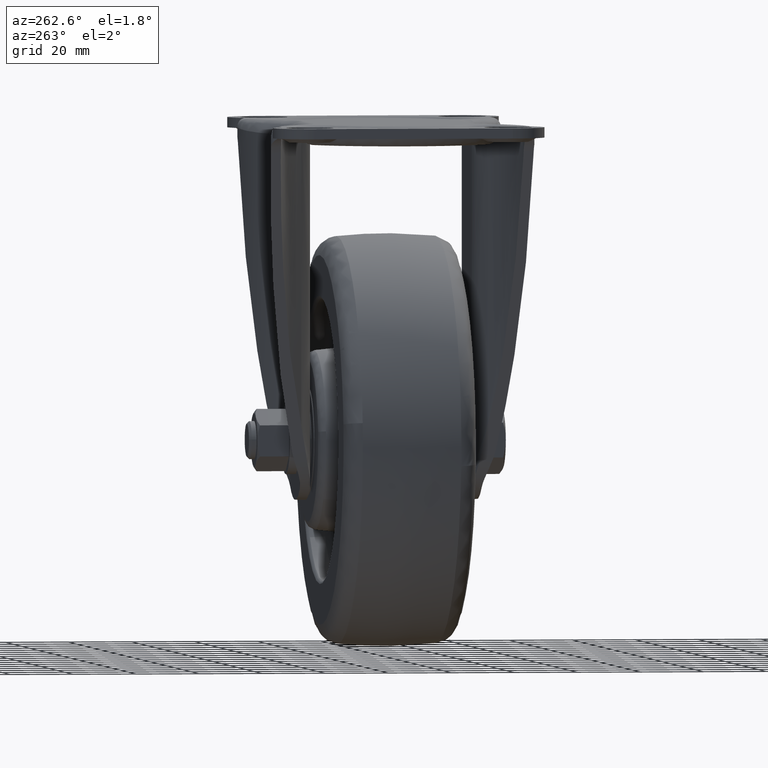
[diagram: clean part render]
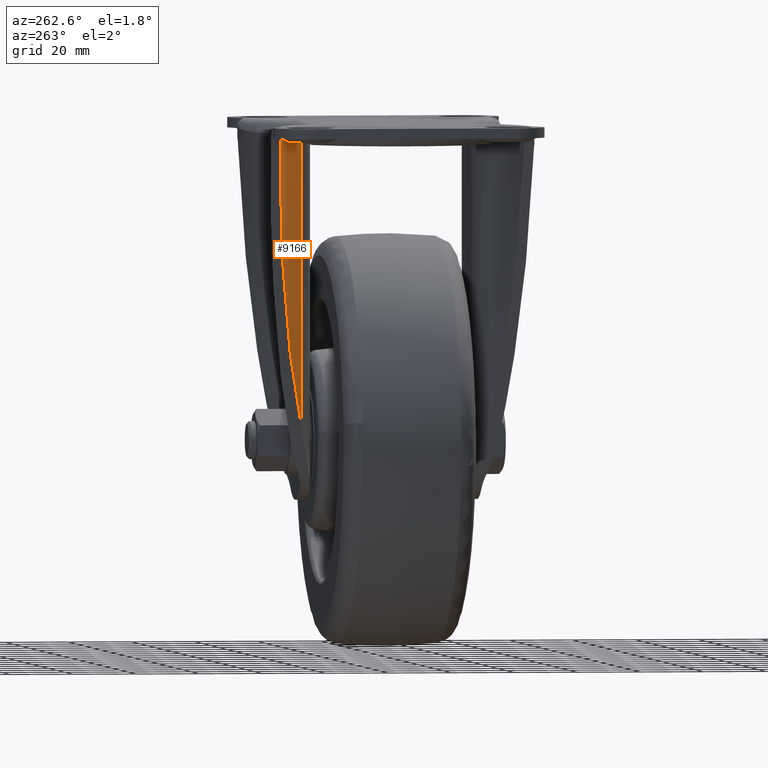
[diagram: same view with one face highlighted and labeled with its STEP entity id]
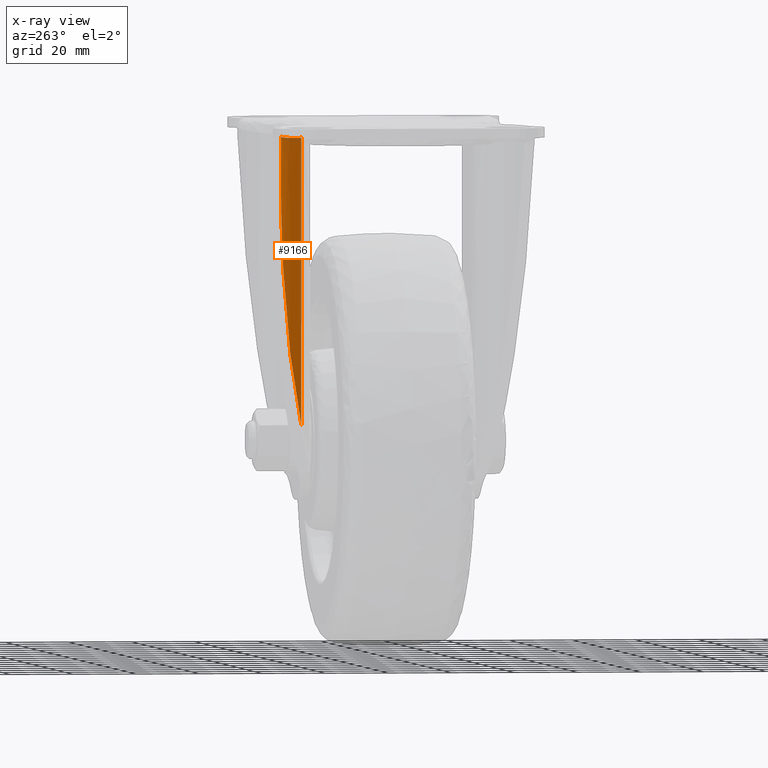
[diagram: x-ray of the same camera — body ghosted, the highlighted face saturated]
A machine part, auxiliary view. The second image highlights one B-rep face of the part: STEP entity #9166.
The next image is the same camera in x-ray: the body ghosted, the highlighted face saturated — about 2% of this face is hidden behind the body in this view.
In plain terms, the highlighted face is a freeform B-spline surface patch.
Its self-contained STEP definition (entity closure, byte-faithful):
#7348=CARTESIAN_POINT('',(-21.237268951802701,29.621883223245199,-4.200000000000000));
#7349=VERTEX_POINT('',#7348);
#7363=CARTESIAN_POINT('',(-21.237268951802701,29.621883223245199,-94.624682162195086));
#7364=VERTEX_POINT('',#7363);
#7365=CARTESIAN_POINT('',(-21.237268951802701,29.621883223245199,-94.624682162195086));
#7366=CARTESIAN_POINT('',(-21.237268951802701,29.621883223245199,-4.200000000000000));
#7367=QUASI_UNIFORM_CURVE('',1,(#7365,#7366),.UNSPECIFIED.,.F.,.U.);
#7368=EDGE_CURVE('',#7364,#7349,#7367,.T.);
#9100=CARTESIAN_POINT('',(-40.114591209057203,38.536594430468107,-96.910299216249967));
#9101=CARTESIAN_POINT('',(-40.114591209057203,38.536594430468107,-0.857242519593754));
#9102=CARTESIAN_POINT('',(-28.359439694276201,37.708663510316995,-96.910299216249967));
#9103=CARTESIAN_POINT('',(-28.359439694276201,37.708663510316995,-0.857242519593754));
#9104=CARTESIAN_POINT('',(-20.556364840327500,28.877973867504608,-96.910299216249953));
#9105=CARTESIAN_POINT('',(-20.556364840327500,28.877973867504608,-0.857242519593754));
#9113=(BOUNDED_SURFACE()B_SPLINE_SURFACE(1,2,((#9100,#9102,#9104),(#9101,#9103,#9105)),.UNSPECIFIED.,.F.,.F.,.U.)B_SPLINE_SURFACE_WITH_KNOTS((2,2),(3,3),(0.0,96.053056696656213),(0.0,22.656784701416569),.UNSPECIFIED.)GEOMETRIC_REPRESENTATION_ITEM()RATIONAL_B_SPLINE_SURFACE(((1.0,0.921566616748285,0.991476641395818),(1.0,0.921566616748285,0.991476641395818)))REPRESENTATION_ITEM('')SURFACE());
#9114=ORIENTED_EDGE('',*,*,#7368,.T.);
#9115=CARTESIAN_POINT('',(-39.348020903349251,38.472304749890348,-3.200000000000000));
#9116=VERTEX_POINT('',#9115);
#9117=CARTESIAN_POINT('',(-21.237268951802719,29.621883223245231,-4.199999999999982));
#9118=CARTESIAN_POINT('',(-21.415453813070290,29.806950516087280,-4.199572313769236));
#9119=CARTESIAN_POINT('',(-21.775501953620601,30.180905599535159,-4.198708112225835));
#9120=CARTESIAN_POINT('',(-22.340211476527440,30.728637417386530,-4.191895049934262));
#9121=CARTESIAN_POINT('',(-22.930416162287191,31.272425115013629,-4.181072960170436));
#9122=CARTESIAN_POINT('',(-23.547977148388352,31.809523437518539,-4.165821625847885));
#9123=CARTESIAN_POINT('',(-24.192892622397260,32.338848558471767,-4.146256943343331));
#9124=CARTESIAN_POINT('',(-24.865605433096210,32.858786642106892,-4.122346902574333));
#9125=CARTESIAN_POINT('',(-25.566359894644211,33.367799787333439,-4.094100026592782));
#9126=CARTESIAN_POINT('',(-26.295372915384672,33.864260452242512,-4.061514729439709));
#9127=CARTESIAN_POINT('',(-27.052779790503561,34.346498821571238,-4.024588140352472));
#9128=CARTESIAN_POINT('',(-27.838644260641129,34.812792978321539,-3.983333370701653));
#9129=CARTESIAN_POINT('',(-28.652942086349540,35.261371231494813,-3.937699266034855));
#9130=CARTESIAN_POINT('',(-29.449146759474232,35.666781782511052,-3.890627141312507));
#9131=CARTESIAN_POINT('',(-30.245254211350272,36.042131958730963,-3.840809533242777));
#9132=CARTESIAN_POINT('',(-31.060989445867509,36.397793024689911,-3.787415974485519));
#9133=CARTESIAN_POINT('',(-31.966593562474738,36.758222462526831,-3.726367260706236));
#9134=CARTESIAN_POINT('',(-32.964205479428372,37.115031556722428,-3.657604812722636));
#9135=CARTESIAN_POINT('',(-34.055629721504303,37.458842445551923,-3.581140193930872));
#9136=CARTESIAN_POINT('',(-35.242140350198639,37.779836958338372,-3.496972771486077));
#9137=CARTESIAN_POINT('',(-36.524547579372033,38.065462376635097,-3.405073773912609));
#9138=CARTESIAN_POINT('',(-37.902118297411249,38.309937547363262,-3.305558052860338));
#9139=CARTESIAN_POINT('',(-38.856682540260763,38.417130054733640,-3.235870134468388));
#9140=CARTESIAN_POINT('',(-39.348020903349251,38.472304749890363,-3.199999999999981));
#9141=B_SPLINE_CURVE_WITH_KNOTS('',3,(#9117,#9118,#9119,#9120,#9121,#9122,#9123,#9124,#9125,#9126,#9127,#9128,#9129,#9130,#9131,#9132,#9133,#9134,#9135,#9136,#9137,#9138,#9139,#9140),.UNSPECIFIED.,.F.,.U.,(4,1,1,1,1,1,1,1,1,1,1,1,1,1,1,1,1,1,1,1,1,4),(0.0,0.037372054965062,0.075515612285989,0.114431761257915,0.154121527336587,0.194585876934655,0.235825721782388,0.277841922898685,0.320635294212798,0.364206605872470,0.408556587270055,0.453685929814600,0.499595289474731,0.538695014910298,0.581919539989155,0.629269154519354,0.680744047372551,0.736344333806480,0.796070073353854,0.859921281933408,0.927897940286429,1.0),.UNSPECIFIED.);
#9142=EDGE_CURVE('',#7349,#9116,#9141,.T.);
#9143=ORIENTED_EDGE('',*,*,#9142,.T.);
#9144=CARTESIAN_POINT('',(-39.348020903349251,38.472304893260556,-11.030471618748701));
#9145=VERTEX_POINT('',#9144);
#9146=CARTESIAN_POINT('',(-39.348020903349251,38.472304893260556,-11.030471618748701));
#9147=CARTESIAN_POINT('',(-39.348020903349251,38.472304749890348,-3.200000000000000));
#9148=QUASI_UNIFORM_CURVE('',1,(#9146,#9147),.UNSPECIFIED.,.F.,.U.);
#9149=EDGE_CURVE('',#9145,#9116,#9148,.T.);
#9150=ORIENTED_EDGE('',*,*,#9149,.F.);
#9151=CARTESIAN_POINT('',(-21.237268951802669,29.621883223245199,-94.624682162195256));
#9152=CARTESIAN_POINT('',(-28.639466232052072,37.430018652480697,-60.458191472864470));
#9153=CARTESIAN_POINT('',(-39.348020903349237,38.472304749890363,-11.030471618748690));
#9161=(BOUNDED_CURVE()B_SPLINE_CURVE(2,(#9151,#9152,#9153),.UNSPECIFIED.,.F.,.U.)CURVE()GEOMETRIC_REPRESENTATION_ITEM()QUASI_UNIFORM_CURVE()RATIONAL_B_SPLINE_CURVE((1.0,0.936765192765137,1.0))REPRESENTATION_ITEM(''));
#9162=EDGE_CURVE('',#7364,#9145,#9161,.T.);
#9163=ORIENTED_EDGE('',*,*,#9162,.F.);
#9164=EDGE_LOOP('',(#9114,#9143,#9150,#9163));
#9165=FACE_OUTER_BOUND('',#9164,.T.);
#9166=ADVANCED_FACE('',(#9165),#9113,.F.);